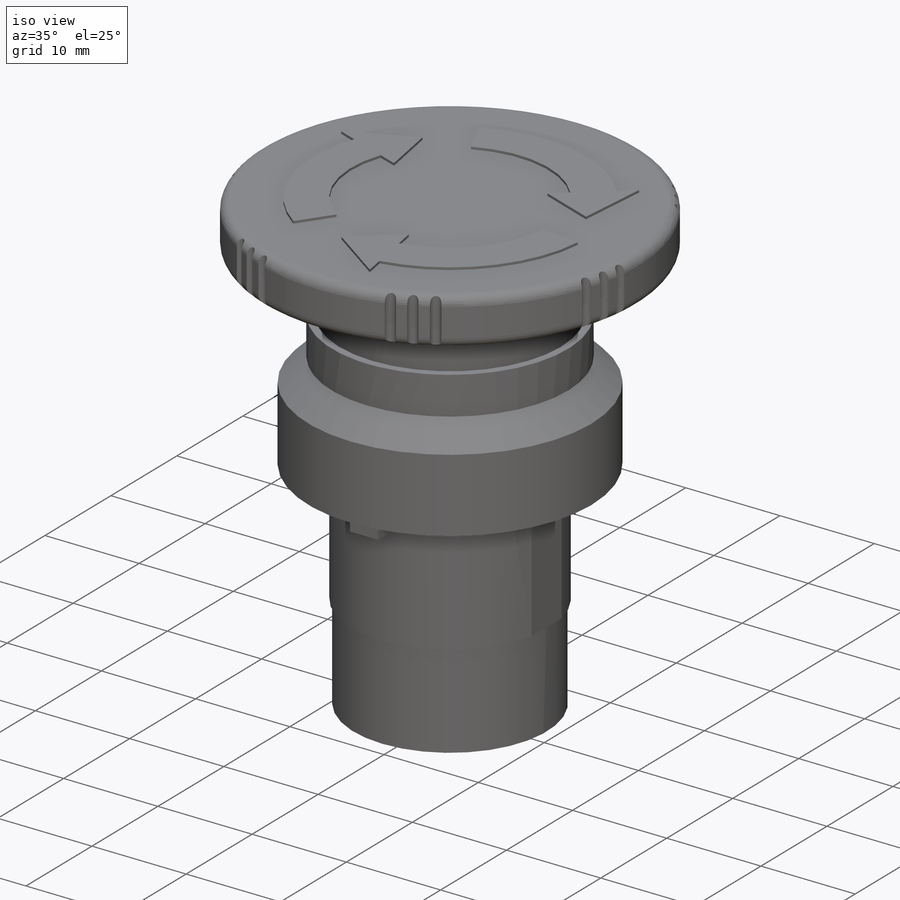
[diagram: iso view]
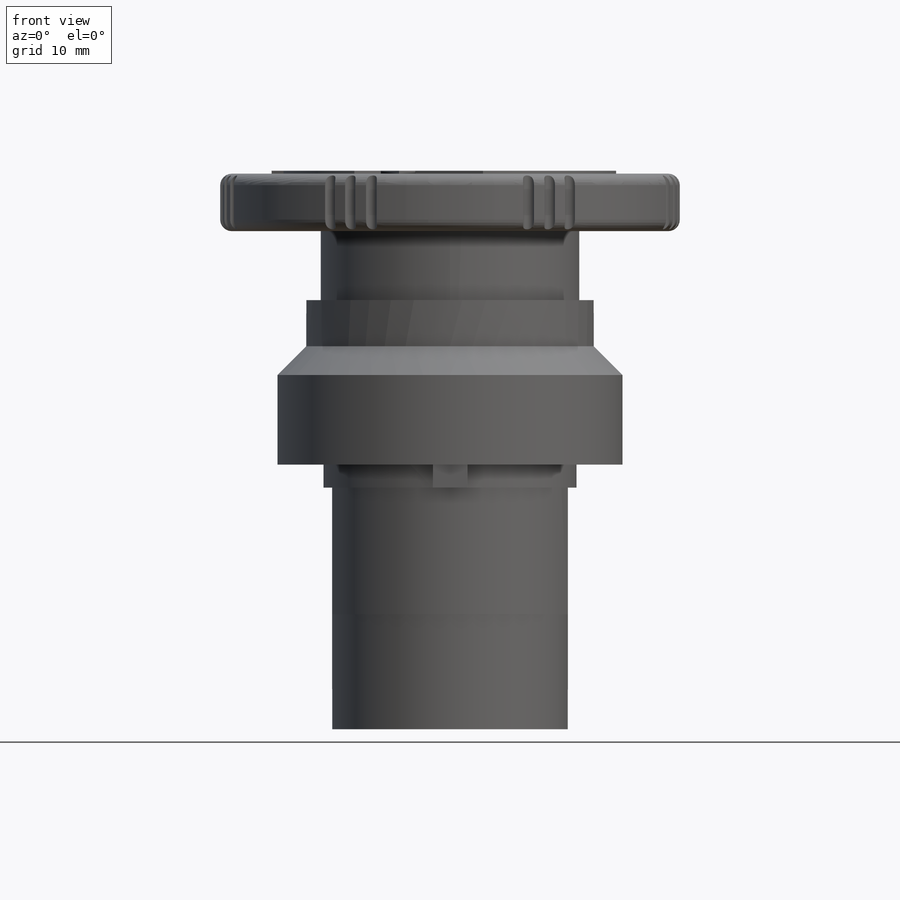
[diagram: front view]
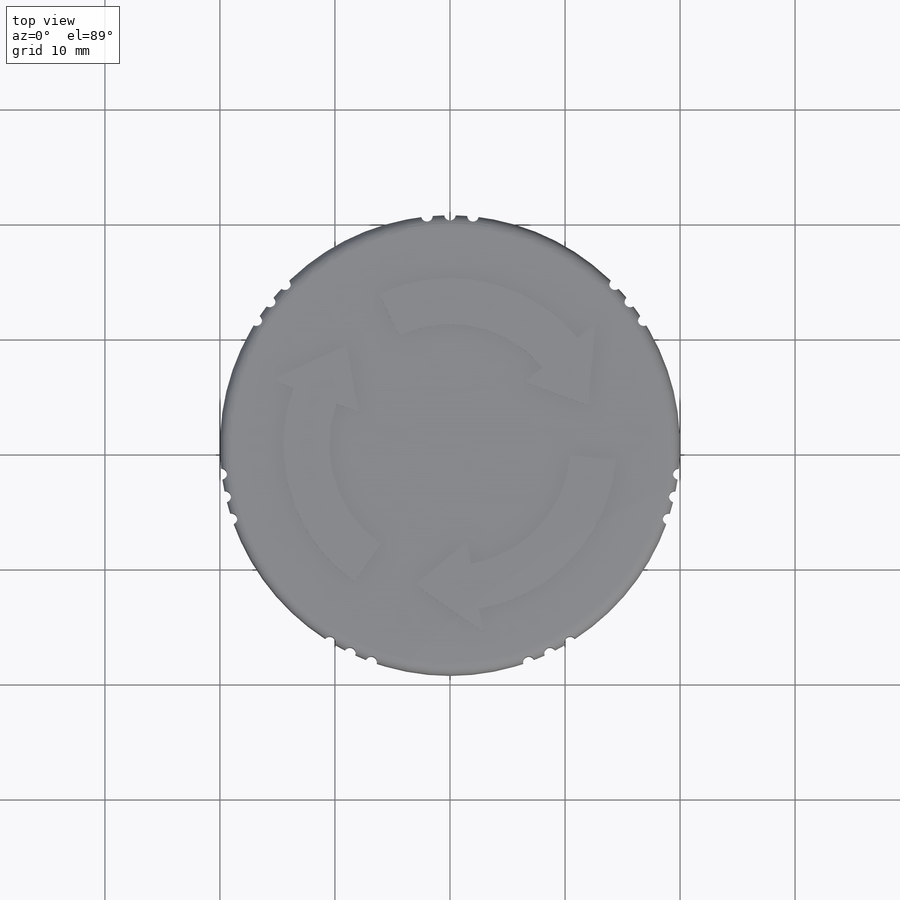
[diagram: top view]
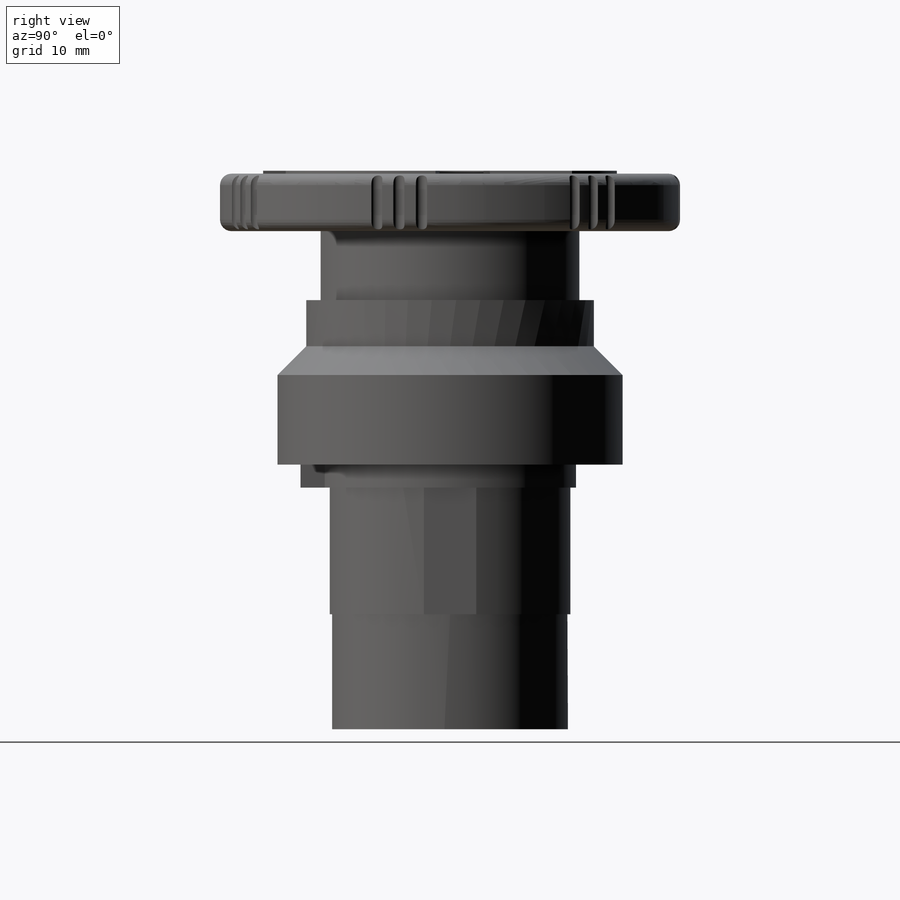
[diagram: right view]
SOLIDWORKS PART (.sldprt)
format: sldprt  version: not decoded by parser v0  size: 516,608 bytes
history: native  units: mm
features: sketch x13, extrude x10, cut_extrude x3, material x1, fillet x1 (+13 scaffold rows collapsed)
feature tree (41):
  scaffold x13  (default folders/planes/origin — collapsed)
  material  "Material <not specified>"
  sketch  "Sketch1"  dims[D1=30.0mm]
  extrude  "Boss-Extrude1"  Depth=6.3mm
  sketch  "Sketch2"  dims[D1=30.0mm]
  extrude  "Boss-Extrude2"  Depth=1.5mm
  sketch  "Sketch3"  dims[D1=30.0mm]
  extrude  "Boss-Extrude3"  Depth=2.5mm
  sketch  "Sketch4"  dims[D1=25.0mm]
  extrude  "Boss-Extrude4"  Depth=4mm
  sketch  "Sketch5"  dims[c1.D1=~23.368389mm c2.D1=23.5mm]
  cut_extrude  "Cut-Extrude1"  Depth=14mm
  sketch  "Sketch6"  dims[D1=22.5mm]
  extrude  "Boss-Extrude5"  Depth=20mm
  sketch  "Sketch8"  dims[D1=40.0mm]
  extrude  "Boss-Extrude7"  Depth=5mm
  fillet  "Fillet1"  Radius=1mm
  sketch  "Sketch9"  dims[D1=1.0mm D2=1.0mm D3=2.0mm D4=7.0]
  cut_extrude  "Cut-Extrude2"  Depth=15mm
  sketch  "Sketch10"  dims[c1.D1=29.0mm c1.D2=21.0mm c1.D3=25.0mm c1.D4=19.0mm c2.D4=50.0deg c2.D5=2.0mm c2.D6=~1.732051mm c3.D6=45.0deg c3.D7=~1.732051mm c4.D7=~60.080942deg c5.D7=~6.93648mm c6.D7=~74.919058deg c7.D7=19.0mm c8.D7=25.0deg c8.D8=3.0]
  extrude  "Boss-Extrude8"  Depth=0.25mm
  sketch  "Sketch12"  dims[D1=22.0mm D2=3.0mm D3=1.5mm D4=13.0mm]
  extrude  "Boss-Extrude9"  Depth=2mm
  sketch  "Sketch13"  dims[D1=0.5mm]
  extrude  "Boss-Extrude10"  Depth=11mm
  sketch  "Sketch14"  dims[D1=20.5mm]
  extrude  "Boss-Extrude11"  Depth=10mm
  sketch  "Sketch15"  dims[D1=10.0mm D2=30.0mm D3=15.0mm]
  cut_extrude  "Cut-Extrude3"  [1 undecoded]
decode coverage: 26 of 27 modeling features carry decoded parameters
note: ~ marks probable driven/reference dimensions
note: 1 parameter value undecoded
note: suppression state not decoded; provenance and decode notes live in map.json
